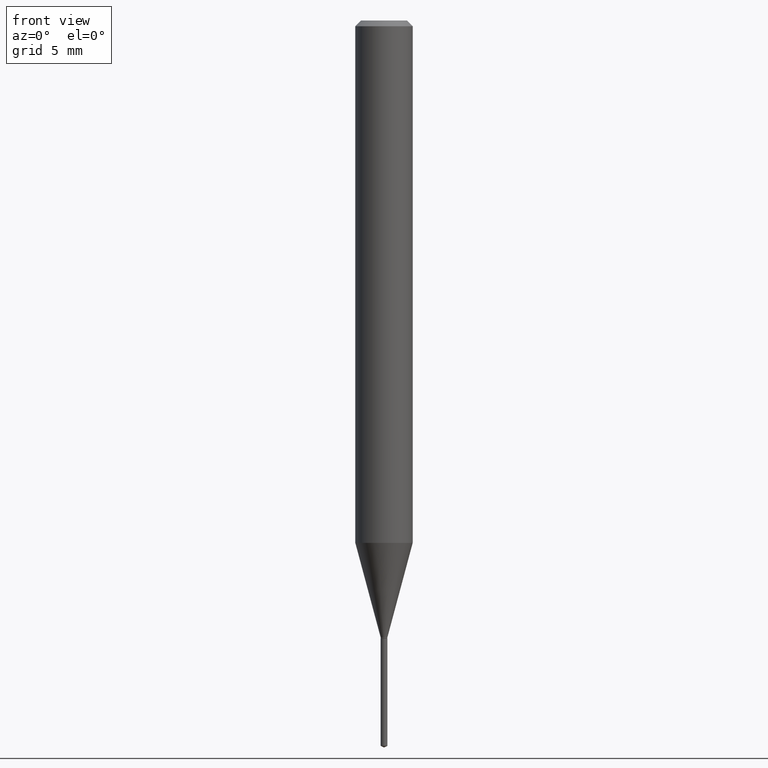
[diagram: clean part render]
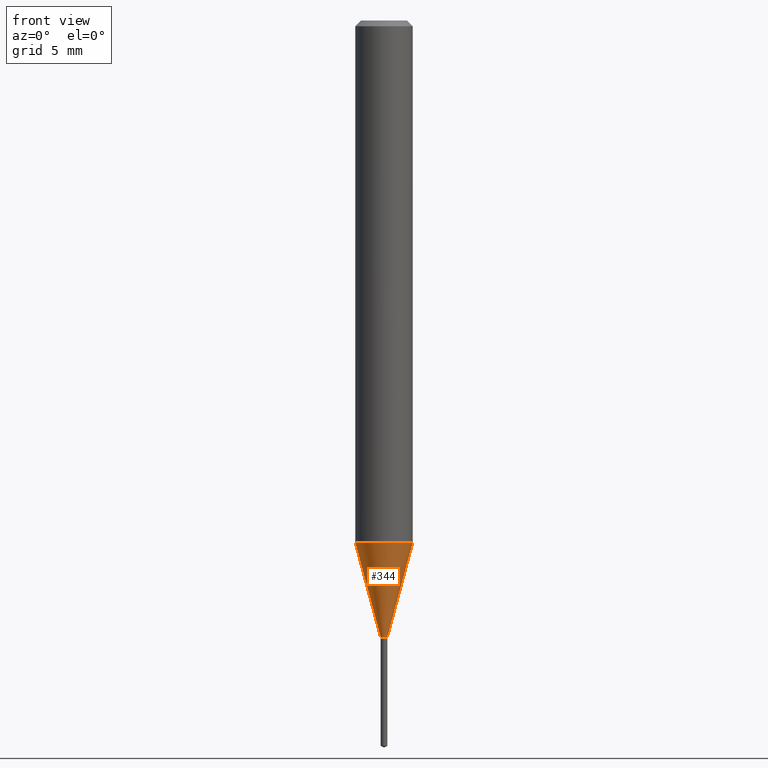
[diagram: same view with one face highlighted and labeled with its STEP entity id]
A machine part, front view. The second image highlights one B-rep face of the part: STEP entity #344.
In plain terms, the highlighted conical surface has half-angle 15 deg.
Its self-contained STEP definition (entity closure, byte-faithful):
#5 = CARTESIAN_POINT ( 'NONE',  ( 0.006899999999999999883, -4.480967150271292854E-15, -1.269600000000000062 ) ) ;
#6 = ORIENTED_EDGE ( 'NONE', *, *, #144, .F. ) ;
#23 = DIRECTION ( 'NONE',  ( 1.000000000000000000, -6.982962677686234367E-15, 0.000000000000000000 ) ) ;
#39 = DIRECTION ( 'NONE',  ( 0.2588190451025213501, 1.565188264969621968E-15, 0.9659258262890682012 ) ) ;
#50 = VECTOR ( 'NONE', #39, 39.37007874015747433 ) ;
#54 = CARTESIAN_POINT ( 'NONE',  ( -0.05905000000000013710, -3.333674605453837154E-15, -1.074973550385283083 ) ) ;
#58 = ORIENTED_EDGE ( 'NONE', *, *, #384, .F. ) ;
#73 = EDGE_CURVE ( 'NONE', #156, #398, #99, .T. ) ;
#91 = LINE ( 'NONE', #5, #50 ) ;
#99 = CIRCLE ( 'NONE', #147, 0.006899999999999999883 ) ;
#103 = CARTESIAN_POINT ( 'NONE',  ( 0.05905000000000013710, -4.165594037037551961E-15, -1.074973550385283083 ) ) ;
#126 = DIRECTION ( 'NONE',  ( 1.000000000000000000, -6.982962677686264344E-15, 0.000000000000000000 ) ) ;
#129 = EDGE_CURVE ( 'NONE', #398, #312, #91, .T. ) ;
#144 = EDGE_CURVE ( 'NONE', #271, #312, #270, .T. ) ;
#147 = AXIS2_PLACEMENT_3D ( 'NONE', #357, #287, #430 ) ;
#156 = VERTEX_POINT ( 'NONE', #278 ) ;
#159 = CONICAL_SURFACE ( 'NONE', #198, 0.006899999999999999883, 0.2617993877991500740 ) ;
#190 = LINE ( 'NONE', #272, #479 ) ;
#198 = AXIS2_PLACEMENT_3D ( 'NONE', #464, #366, #23 ) ;
#225 = FACE_OUTER_BOUND ( 'NONE', #353, .T. ) ;
#268 = ORIENTED_EDGE ( 'NONE', *, *, #129, .T. ) ;
#270 = CIRCLE ( 'NONE', #478, 0.05905000000000013710 ) ;
#271 = VERTEX_POINT ( 'NONE', #54 ) ;
#272 = CARTESIAN_POINT ( 'NONE',  ( -0.006899999999999999883, -4.383757259027810743E-15, -1.269600000000000062 ) ) ;
#275 = DIRECTION ( 'NONE',  ( -2.445468806185136597E-29, 3.491481338843145583E-15, 1.000000000000000000 ) ) ;
#278 = CARTESIAN_POINT ( 'NONE',  ( -0.006899999999999999883, -4.386550444098885937E-15, -1.269600000000000062 ) ) ;
#282 = ORIENTED_EDGE ( 'NONE', *, *, #73, .T. ) ;
#283 = CARTESIAN_POINT ( 'NONE',  ( 2.628814284941295656E-29, -3.753250090920177830E-15, -1.074973550385283083 ) ) ;
#287 = DIRECTION ( 'NONE',  ( -2.445468806185136597E-29, 3.491481338843145583E-15, 1.000000000000000000 ) ) ;
#312 = VERTEX_POINT ( 'NONE', #103 ) ;
#344 = ADVANCED_FACE ( 'NONE', ( #225 ), #159, .T. ) ;
#353 = EDGE_LOOP ( 'NONE', ( #58, #282, #268, #6 ) ) ;
#357 = CARTESIAN_POINT ( 'NONE',  ( 3.104767196332649259E-29, -4.432784707795257778E-15, -1.269600000000000062 ) ) ;
#366 = DIRECTION ( 'NONE',  ( -2.445468806185136597E-29, 3.491481338843145583E-15, 1.000000000000000000 ) ) ;
#375 = CARTESIAN_POINT ( 'NONE',  ( 0.006899999999999999883, -4.480967150271292854E-15, -1.269600000000000062 ) ) ;
#380 = DIRECTION ( 'NONE',  ( -0.2588190451025213501, 5.211531920934551042E-15, 0.9659258262890682012 ) ) ;
#384 = EDGE_CURVE ( 'NONE', #156, #271, #190, .T. ) ;
#398 = VERTEX_POINT ( 'NONE', #375 ) ;
#430 = DIRECTION ( 'NONE',  ( 1.000000000000000000, -6.982962677686234367E-15, 0.000000000000000000 ) ) ;
#464 = CARTESIAN_POINT ( 'NONE',  ( 3.104767196332649259E-29, -4.432784707795257778E-15, -1.269600000000000062 ) ) ;
#478 = AXIS2_PLACEMENT_3D ( 'NONE', #283, #275, #126 ) ;
#479 = VECTOR ( 'NONE', #380, 39.37007874015747433 ) ;